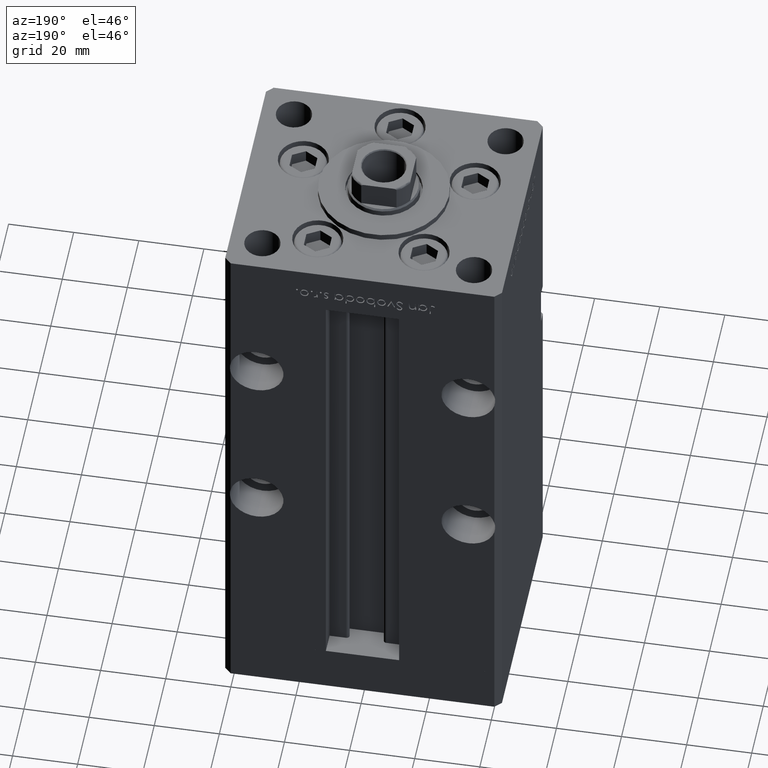
[diagram: clean part render]
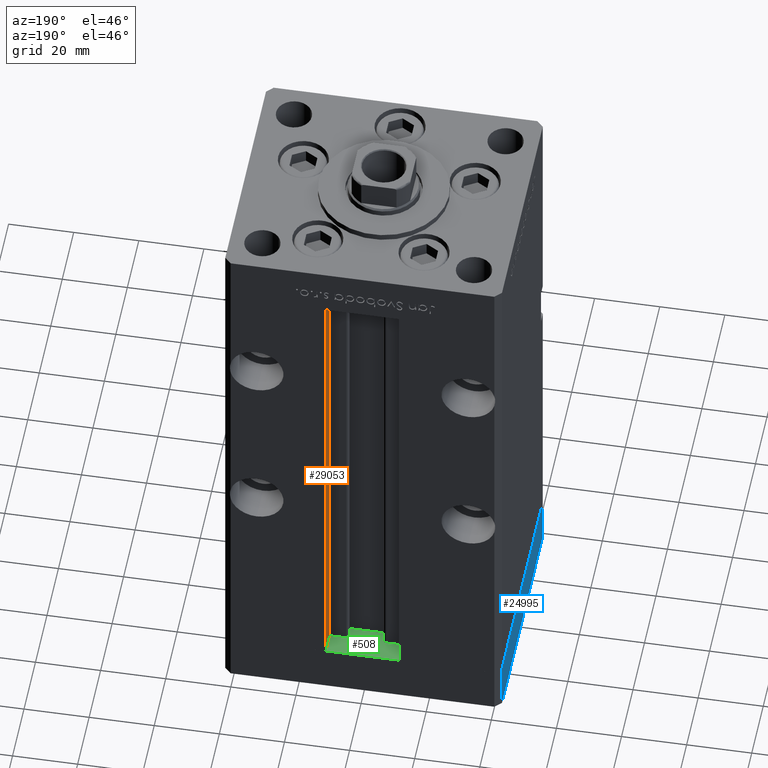
[diagram: same view with three faces highlighted in distinct colors, each labeled with its STEP entity id]
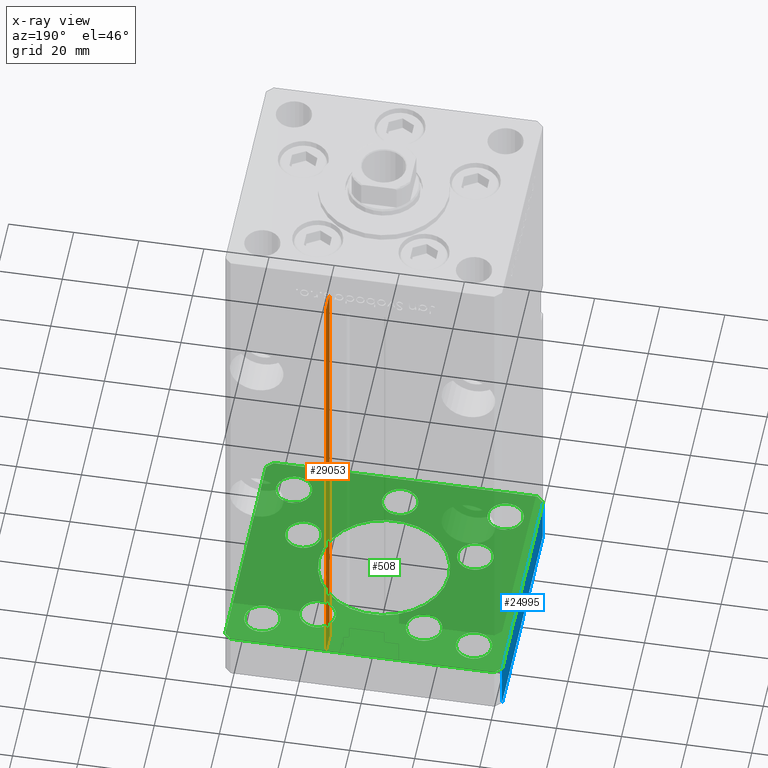
[diagram: x-ray of the same camera — body ghosted, the three highlighted faces saturated]
A machine part, auxiliary view with three faces highlighted in distinct colors.
The next image is the same camera in x-ray (body ghosted, the three faces saturated) — at least one of them is partly hidden behind the body in this view.
Their STEP definitions:

[orange] entity #29053 — the highlighted planar face has unit normal (1, 0, 0).
#919 = CARTESIAN_POINT ( 'NONE',  ( 11.24999999999999822, 37.50000000000000000, 0.000000000000000000 ) ) ;
#2530 = VERTEX_POINT ( 'NONE', #15769 ) ;
#3277 = DIRECTION ( 'NONE',  ( -0.000000000000000000, -0.000000000000000000, 1.000000000000000000 ) ) ;
#4105 = ORIENTED_EDGE ( 'NONE', *, *, #37421, .F. ) ;
#6387 = FACE_OUTER_BOUND ( 'NONE', #30369, .T. ) ;
#9852 = VECTOR ( 'NONE', #42411, 1000.000000000000000 ) ;
#11233 = PLANE ( 'NONE',  #36677 ) ;
#11888 = VECTOR ( 'NONE', #3277, 1000.000000000000000 ) ;
#12029 = CARTESIAN_POINT ( 'NONE',  ( 11.24999999999999822, 37.50000000000000000, 0.000000000000000000 ) ) ;
#15126 = LINE ( 'NONE', #19947, #11888 ) ;
#15372 = VECTOR ( 'NONE', #16315, 1000.000000000000000 ) ;
#15769 = CARTESIAN_POINT ( 'NONE',  ( 11.24999999999999112, 37.50000000000000000, 148.5000000000000000 ) ) ;
#16315 = DIRECTION ( 'NONE',  ( -0.000000000000000000, -1.000000000000000000, 0.000000000000000000 ) ) ;
#16731 = VERTEX_POINT ( 'NONE', #43349 ) ;
#19947 = CARTESIAN_POINT ( 'NONE',  ( 11.24999999999999822, 31.00000000000000000, 0.000000000000000000 ) ) ;
#23061 = CARTESIAN_POINT ( 'NONE',  ( 11.24999999999999822, 31.00000000000000000, 0.000000000000000000 ) ) ;
#23591 = EDGE_CURVE ( 'NONE', #32375, #31890, #46712, .T. ) ;
#24998 = ORIENTED_EDGE ( 'NONE', *, *, #23591, .F. ) ;
#25739 = CARTESIAN_POINT ( 'NONE',  ( 11.24999999999999822, 31.00000000000000000, 0.000000000000000000 ) ) ;
#29053 = ADVANCED_FACE ( 'NONE', ( #6387 ), #11233, .F. ) ;
#30369 = EDGE_LOOP ( 'NONE', ( #4105, #24998, #42258, #47545 ) ) ;
#31669 = DIRECTION ( 'NONE',  ( 0.000000000000000000, 0.000000000000000000, -1.000000000000000000 ) ) ;
#31890 = VERTEX_POINT ( 'NONE', #919 ) ;
#32375 = VERTEX_POINT ( 'NONE', #45187 ) ;
#36030 = EDGE_CURVE ( 'NONE', #32375, #16731, #15126, .T. ) ;
#36677 = AXIS2_PLACEMENT_3D ( 'NONE', #23061, #51044, #31669 ) ;
#37421 = EDGE_CURVE ( 'NONE', #31890, #2530, #40550, .T. ) ;
#40550 = LINE ( 'NONE', #12029, #51413 ) ;
#41719 = EDGE_CURVE ( 'NONE', #2530, #16731, #45890, .T. ) ;
#42258 = ORIENTED_EDGE ( 'NONE', *, *, #36030, .T. ) ;
#42411 = DIRECTION ( 'NONE',  ( 0.000000000000000000, 1.000000000000000000, 0.000000000000000000 ) ) ;
#43349 = CARTESIAN_POINT ( 'NONE',  ( 11.24999999999999822, 31.00000000000000000, 148.5000000000000000 ) ) ;
#45187 = CARTESIAN_POINT ( 'NONE',  ( 11.24999999999999822, 31.00000000000000000, 0.000000000000000000 ) ) ;
#45890 = LINE ( 'NONE', #53165, #15372 ) ;
#46712 = LINE ( 'NONE', #25739, #9852 ) ;
#47545 = ORIENTED_EDGE ( 'NONE', *, *, #41719, .F. ) ;
#47806 = DIRECTION ( 'NONE',  ( -0.000000000000000000, -0.000000000000000000, 1.000000000000000000 ) ) ;
#51044 = DIRECTION ( 'NONE',  ( 1.000000000000000000, -0.000000000000000000, 0.000000000000000000 ) ) ;
#51413 = VECTOR ( 'NONE', #47806, 1000.000000000000000 ) ;
#53165 = CARTESIAN_POINT ( 'NONE',  ( 11.24999999999999822, 0.000000000000000000, 148.5000000000000000 ) ) ;

[blue] entity #24995 — the highlighted planar face has unit normal (-1, -0, 0).
#1447 = VERTEX_POINT ( 'NONE', #15277 ) ;
#3538 = EDGE_CURVE ( 'NONE', #36526, #11255, #41050, .T. ) ;
#3737 = ORIENTED_EDGE ( 'NONE', *, *, #3538, .T. ) ;
#4448 = CARTESIAN_POINT ( 'NONE',  ( 42.50000000000000711, -35.50000000000000000, -15.00000000000000000 ) ) ;
#6499 = LINE ( 'NONE', #22913, #32957 ) ;
#10243 = ORIENTED_EDGE ( 'NONE', *, *, #16742, .F. ) ;
#10526 = ORIENTED_EDGE ( 'NONE', *, *, #49853, .F. ) ;
#11255 = VERTEX_POINT ( 'NONE', #39675 ) ;
#12251 = DIRECTION ( 'NONE',  ( -1.172770800660376741E-15, 1.000000000000000000, 0.000000000000000000 ) ) ;
#13293 = CARTESIAN_POINT ( 'NONE',  ( 42.49999999999992895, 35.50000000000000000, 0.000000000000000000 ) ) ;
#13799 = VECTOR ( 'NONE', #20600, 1000.000000000000000 ) ;
#15277 = CARTESIAN_POINT ( 'NONE',  ( 42.50000000000000711, -35.50000000000000000, 0.000000000000000000 ) ) ;
#16039 = CARTESIAN_POINT ( 'NONE',  ( 42.50000000000000711, -35.50000000000000000, -15.00000000000000000 ) ) ;
#16740 = ORIENTED_EDGE ( 'NONE', *, *, #52997, .T. ) ;
#16742 = EDGE_CURVE ( 'NONE', #1447, #39898, #6499, .T. ) ;
#20053 = PLANE ( 'NONE',  #26223 ) ;
#20600 = DIRECTION ( 'NONE',  ( -1.172770800660376741E-15, 1.000000000000000000, 0.000000000000000000 ) ) ;
#20836 = VECTOR ( 'NONE', #24555, 1000.000000000000000 ) ;
#20854 = DIRECTION ( 'NONE',  ( 1.000000000000000000, 1.172770800660376741E-15, -0.000000000000000000 ) ) ;
#22795 = CARTESIAN_POINT ( 'NONE',  ( 42.50000000000000711, -35.50000000000000000, -15.00000000000000000 ) ) ;
#22913 = CARTESIAN_POINT ( 'NONE',  ( 42.50000000000000711, -35.50000000000000000, 0.000000000000000000 ) ) ;
#24555 = DIRECTION ( 'NONE',  ( 0.000000000000000000, 0.000000000000000000, 1.000000000000000000 ) ) ;
#24995 = ADVANCED_FACE ( 'NONE', ( #41566 ), #20053, .T. ) ;
#25123 = EDGE_LOOP ( 'NONE', ( #10243, #10526, #3737, #16740 ) ) ;
#26223 = AXIS2_PLACEMENT_3D ( 'NONE', #4448, #20854, #12251 ) ;
#31069 = VECTOR ( 'NONE', #46715, 1000.000000000000000 ) ;
#32957 = VECTOR ( 'NONE', #39323, 1000.000000000000000 ) ;
#33681 = LINE ( 'NONE', #50089, #20836 ) ;
#34876 = LINE ( 'NONE', #46979, #31069 ) ;
#36526 = VERTEX_POINT ( 'NONE', #22795 ) ;
#39323 = DIRECTION ( 'NONE',  ( -1.172770800660376741E-15, 1.000000000000000000, 0.000000000000000000 ) ) ;
#39675 = CARTESIAN_POINT ( 'NONE',  ( 42.49999999999992895, 35.50000000000000000, -15.00000000000000000 ) ) ;
#39898 = VERTEX_POINT ( 'NONE', #13293 ) ;
#41050 = LINE ( 'NONE', #16039, #13799 ) ;
#41566 = FACE_OUTER_BOUND ( 'NONE', #25123, .T. ) ;
#46715 = DIRECTION ( 'NONE',  ( 0.000000000000000000, 0.000000000000000000, 1.000000000000000000 ) ) ;
#46979 = CARTESIAN_POINT ( 'NONE',  ( 42.50000000000000711, -35.50000000000000000, -15.00000000000000000 ) ) ;
#49853 = EDGE_CURVE ( 'NONE', #36526, #1447, #34876, .T. ) ;
#50089 = CARTESIAN_POINT ( 'NONE',  ( 42.49999999999992895, 35.50000000000000000, -15.00000000000000000 ) ) ;
#52997 = EDGE_CURVE ( 'NONE', #11255, #39898, #33681, .T. ) ;

[green] entity #508 — the highlighted planar face has unit normal (0, 0, -1).
#5 = ORIENTED_EDGE ( 'NONE', *, *, #20067, .F. ) ;
#118 = EDGE_LOOP ( 'NONE', ( #24921, #52442 ) ) ;
#173 = ORIENTED_EDGE ( 'NONE', *, *, #38806, .F. ) ;
#226 = VERTEX_POINT ( 'NONE', #38220 ) ;
#264 = CARTESIAN_POINT ( 'NONE',  ( -42.50000000000000711, 35.49999999999997158, -15.00000000000000000 ) ) ;
#345 = EDGE_LOOP ( 'NONE', ( #38540, #28589 ) ) ;
#454 = VERTEX_POINT ( 'NONE', #41133 ) ;
#508 = ADVANCED_FACE ( 'NONE', ( #9362, #51040, #25773, #42184, #5323, #46483, #31400, #48069, #11764, #44580, #27637 ), #35171, .F. ) ;
#576 = DIRECTION ( 'NONE',  ( -0.7071067811865474617, 0.7071067811865474617, 0.000000000000000000 ) ) ;
#667 = DIRECTION ( 'NONE',  ( 1.000000000000000000, 0.000000000000000000, 0.000000000000000000 ) ) ;
#766 = CARTESIAN_POINT ( 'NONE',  ( -27.00000000000000355, 27.50000000000000355, -15.00000000000000000 ) ) ;
#981 = CARTESIAN_POINT ( 'NONE',  ( -32.50000000000000000, -27.49999999999999645, -15.00000000000000000 ) ) ;
#1351 = CARTESIAN_POINT ( 'NONE',  ( 10.82291334290542473, 22.75000000000000000, -15.00000000000000000 ) ) ;
#1620 = VECTOR ( 'NONE', #33605, 1000.000000000000000 ) ;
#1873 = AXIS2_PLACEMENT_3D ( 'NONE', #47195, #7377, #51769 ) ;
#2018 = CARTESIAN_POINT ( 'NONE',  ( 32.50000000000000000, -27.49999999999999645, -15.00000000000000000 ) ) ;
#2022 = AXIS2_PLACEMENT_3D ( 'NONE', #40180, #52287, #15714 ) ;
#2181 = DIRECTION ( 'NONE',  ( 1.000000000000000000, 0.000000000000000000, 0.000000000000000000 ) ) ;
#2243 = AXIS2_PLACEMENT_3D ( 'NONE', #12226, #7913, #49339 ) ;
#2725 = CARTESIAN_POINT ( 'NONE',  ( 16.32291334290542295, 22.75000000000000000, -15.00000000000000000 ) ) ;
#2762 = CARTESIAN_POINT ( 'NONE',  ( 20.89865316429777309, -9.333333333333330373, -15.00000000000000000 ) ) ;
#3343 = DIRECTION ( 'NONE',  ( 0.000000000000000000, -0.000000000000000000, -1.000000000000000000 ) ) ;
#3429 = AXIS2_PLACEMENT_3D ( 'NONE', #43763, #44035, #6919 ) ;
#3538 = EDGE_CURVE ( 'NONE', #36526, #11255, #41050, .T. ) ;
#3545 = VERTEX_POINT ( 'NONE', #11732 ) ;
#3658 = VECTOR ( 'NONE', #576, 1000.000000000000114 ) ;
#3673 = CARTESIAN_POINT ( 'NONE',  ( -20.89865316429777309, -9.333333333333337478, -15.00000000000000000 ) ) ;
#3798 = AXIS2_PLACEMENT_3D ( 'NONE', #37534, #49628, #667 ) ;
#4438 = CIRCLE ( 'NONE', #6139, 5.499999999999998224 ) ;
#4452 = CARTESIAN_POINT ( 'NONE',  ( -10.82291334290543183, 22.74999999999999645, -15.00000000000000000 ) ) ;
#4596 = CARTESIAN_POINT ( 'NONE',  ( 40.50000000000000000, -37.50000000000000711, -15.00000000000000000 ) ) ;
#4791 = DIRECTION ( 'NONE',  ( 1.000000000000000000, 0.000000000000000000, 0.000000000000000000 ) ) ;
#5323 = FACE_BOUND ( 'NONE', #37825, .T. ) ;
#5418 = CARTESIAN_POINT ( 'NONE',  ( 40.50000000000000000, -37.50000000000000711, -15.00000000000000000 ) ) ;
#5698 = DIRECTION ( 'NONE',  ( -0.7071067811865463515, -0.7071067811865487940, 0.000000000000000000 ) ) ;
#5826 = CARTESIAN_POINT ( 'NONE',  ( 0.000000000000000000, 0.000000000000000000, -15.00000000000000000 ) ) ;
#6139 = AXIS2_PLACEMENT_3D ( 'NONE', #27136, #31175, #43534 ) ;
#6228 = CARTESIAN_POINT ( 'NONE',  ( 21.82291334290542650, 22.75000000000000000, -15.00000000000000000 ) ) ;
#6268 = VERTEX_POINT ( 'NONE', #45507 ) ;
#6431 = ORIENTED_EDGE ( 'NONE', *, *, #8705, .F. ) ;
#6919 = DIRECTION ( 'NONE',  ( 1.000000000000000000, 0.000000000000000000, 0.000000000000000000 ) ) ;
#7316 = VERTEX_POINT ( 'NONE', #26899 ) ;
#7335 = ORIENTED_EDGE ( 'NONE', *, *, #33531, .F. ) ;
#7377 = DIRECTION ( 'NONE',  ( 0.000000000000000000, 0.000000000000000000, 1.000000000000000000 ) ) ;
#7534 = DIRECTION ( 'NONE',  ( 1.000000000000000000, 0.000000000000000000, 0.000000000000000000 ) ) ;
#7879 = DIRECTION ( 'NONE',  ( -1.000000000000000000, 0.000000000000000000, 0.000000000000000000 ) ) ;
#7913 = DIRECTION ( 'NONE',  ( 0.000000000000000000, -0.000000000000000000, -1.000000000000000000 ) ) ;
#8705 = EDGE_CURVE ( 'NONE', #33188, #23979, #37873, .T. ) ;
#8839 = EDGE_LOOP ( 'NONE', ( #51075, #49207, #45627, #44941, #34857, #14259, #15519, #10927 ) ) ;
#9340 = DIRECTION ( 'NONE',  ( 1.000000000000000000, 0.000000000000000000, 0.000000000000000000 ) ) ;
#9362 = FACE_BOUND ( 'NONE', #43183, .T. ) ;
#9921 = CARTESIAN_POINT ( 'NONE',  ( 40.49999999999991473, 37.50000000000000711, -15.00000000000000000 ) ) ;
#10095 = EDGE_CURVE ( 'NONE', #30067, #30959, #47337, .T. ) ;
#10245 = CIRCLE ( 'NONE', #17974, 20.00000000000000000 ) ;
#10356 = DIRECTION ( 'NONE',  ( -1.000000000000000000, 0.000000000000000000, 0.000000000000000000 ) ) ;
#10448 = EDGE_CURVE ( 'NONE', #23979, #33188, #44830, .T. ) ;
#10871 = VERTEX_POINT ( 'NONE', #42501 ) ;
#10927 = ORIENTED_EDGE ( 'NONE', *, *, #40342, .F. ) ;
#11175 = EDGE_CURVE ( 'NONE', #35739, #43603, #41413, .T. ) ;
#11255 = VERTEX_POINT ( 'NONE', #39675 ) ;
#11408 = DIRECTION ( 'NONE',  ( 1.000000000000000000, 0.000000000000000000, 0.000000000000000000 ) ) ;
#11444 = CARTESIAN_POINT ( 'NONE',  ( -26.39865316429776954, -9.333333333333337478, -15.00000000000000000 ) ) ;
#11452 = EDGE_LOOP ( 'NONE', ( #33749, #43480 ) ) ;
#11692 = ORIENTED_EDGE ( 'NONE', *, *, #44879, .F. ) ;
#11713 = CIRCLE ( 'NONE', #2243, 5.500000000000000000 ) ;
#11732 = CARTESIAN_POINT ( 'NONE',  ( -27.00000000000000355, -27.49999999999999645, -15.00000000000000000 ) ) ;
#11764 = FACE_OUTER_BOUND ( 'NONE', #8839, .T. ) ;
#11779 = EDGE_CURVE ( 'NONE', #28811, #41771, #16533, .T. ) ;
#12155 = LINE ( 'NONE', #37442, #3658 ) ;
#12226 = CARTESIAN_POINT ( 'NONE',  ( 3.429011037612589276E-15, -28.00000000000000000, -15.00000000000000000 ) ) ;
#12294 = DIRECTION ( 'NONE',  ( -0.000000000000000000, -0.000000000000000000, -1.000000000000000000 ) ) ;
#12506 = CARTESIAN_POINT ( 'NONE',  ( 3.429011037612589276E-15, -28.00000000000000000, -15.00000000000000000 ) ) ;
#12724 = CARTESIAN_POINT ( 'NONE',  ( 32.50000000000000000, -27.49999999999999645, -15.00000000000000000 ) ) ;
#12876 = EDGE_CURVE ( 'NONE', #34640, #36526, #17791, .T. ) ;
#12892 = ORIENTED_EDGE ( 'NONE', *, *, #22876, .F. ) ;
#13088 = DIRECTION ( 'NONE',  ( -1.000000000000000000, 0.000000000000000000, 0.000000000000000000 ) ) ;
#13118 = DIRECTION ( 'NONE',  ( 0.7071067811865463515, -0.7071067811865487940, 0.000000000000000000 ) ) ;
#13554 = DIRECTION ( 'NONE',  ( 1.000000000000000000, 0.000000000000000000, 0.000000000000000000 ) ) ;
#13799 = VECTOR ( 'NONE', #20600, 1000.000000000000000 ) ;
#13891 = DIRECTION ( 'NONE',  ( 0.000000000000000000, -0.000000000000000000, -1.000000000000000000 ) ) ;
#14016 = CIRCLE ( 'NONE', #32916, 5.499999999999998224 ) ;
#14109 = EDGE_CURVE ( 'NONE', #6268, #30984, #14016, .T. ) ;
#14259 = ORIENTED_EDGE ( 'NONE', *, *, #3538, .F. ) ;
#14331 = VERTEX_POINT ( 'NONE', #9921 ) ;
#14950 = VECTOR ( 'NONE', #5698, 1000.000000000000000 ) ;
#14989 = VERTEX_POINT ( 'NONE', #15629 ) ;
#15468 = VECTOR ( 'NONE', #26636, 1000.000000000000000 ) ;
#15519 = ORIENTED_EDGE ( 'NONE', *, *, #12876, .F. ) ;
#15629 = CARTESIAN_POINT ( 'NONE',  ( 5.500000000000003553, -28.00000000000000000, -15.00000000000000000 ) ) ;
#15692 = AXIS2_PLACEMENT_3D ( 'NONE', #39568, #43322, #7534 ) ;
#15714 = DIRECTION ( 'NONE',  ( 1.000000000000000000, 0.000000000000000000, 0.000000000000000000 ) ) ;
#15887 = EDGE_CURVE ( 'NONE', #14331, #10871, #37220, .T. ) ;
#16039 = CARTESIAN_POINT ( 'NONE',  ( 42.50000000000000711, -35.50000000000000000, -15.00000000000000000 ) ) ;
#16270 = DIRECTION ( 'NONE',  ( 1.000000000000000000, 0.000000000000000000, 0.000000000000000000 ) ) ;
#16533 = CIRCLE ( 'NONE', #25130, 5.499999999999998224 ) ;
#17652 = EDGE_CURVE ( 'NONE', #10871, #42866, #46074, .T. ) ;
#17791 = LINE ( 'NONE', #5418, #37199 ) ;
#17936 = CIRCLE ( 'NONE', #44601, 5.499999999999998224 ) ;
#17974 = AXIS2_PLACEMENT_3D ( 'NONE', #20305, #32412, #16270 ) ;
#18431 = DIRECTION ( 'NONE',  ( -0.000000000000000000, -0.000000000000000000, -1.000000000000000000 ) ) ;
#18732 = ORIENTED_EDGE ( 'NONE', *, *, #11175, .T. ) ;
#18890 = EDGE_CURVE ( 'NONE', #454, #28567, #21010, .T. ) ;
#19516 = CIRCLE ( 'NONE', #49604, 5.500000000000001776 ) ;
#20067 = EDGE_CURVE ( 'NONE', #27360, #49234, #38964, .T. ) ;
#20305 = CARTESIAN_POINT ( 'NONE',  ( 0.000000000000000000, 0.000000000000000000, -15.00000000000000000 ) ) ;
#20344 = DIRECTION ( 'NONE',  ( -1.000000000000000000, 0.000000000000000000, 0.000000000000000000 ) ) ;
#20600 = DIRECTION ( 'NONE',  ( -1.172770800660376741E-15, 1.000000000000000000, 0.000000000000000000 ) ) ;
#21010 = CIRCLE ( 'NONE', #42462, 5.499999999999998224 ) ;
#22224 = DIRECTION ( 'NONE',  ( 1.000000000000000000, 0.000000000000000000, 0.000000000000000000 ) ) ;
#22795 = CARTESIAN_POINT ( 'NONE',  ( 42.50000000000000711, -35.50000000000000000, -15.00000000000000000 ) ) ;
#22876 = EDGE_CURVE ( 'NONE', #41771, #28811, #35604, .T. ) ;
#23204 = AXIS2_PLACEMENT_3D ( 'NONE', #33457, #32935, #24860 ) ;
#23783 = EDGE_LOOP ( 'NONE', ( #6431, #44786 ) ) ;
#23787 = CARTESIAN_POINT ( 'NONE',  ( 26.39865316429776954, -9.333333333333330373, -15.00000000000000000 ) ) ;
#23979 = VERTEX_POINT ( 'NONE', #30243 ) ;
#24319 = CARTESIAN_POINT ( 'NONE',  ( 27.00000000000000355, 27.49999999999999645, -15.00000000000000000 ) ) ;
#24860 = DIRECTION ( 'NONE',  ( 1.000000000000000000, 0.000000000000000000, 0.000000000000000000 ) ) ;
#24873 = AXIS2_PLACEMENT_3D ( 'NONE', #12506, #49618, #13554 ) ;
#24921 = ORIENTED_EDGE ( 'NONE', *, *, #14109, .F. ) ;
#24937 = CARTESIAN_POINT ( 'NONE',  ( 38.00000000000000000, 27.49999999999999645, -15.00000000000000000 ) ) ;
#25010 = LINE ( 'NONE', #264, #1620 ) ;
#25027 = VERTEX_POINT ( 'NONE', #42611 ) ;
#25125 = CARTESIAN_POINT ( 'NONE',  ( 20.00000000000000000, 0.000000000000000000, -15.00000000000000000 ) ) ;
#25130 = AXIS2_PLACEMENT_3D ( 'NONE', #11444, #48289, #40490 ) ;
#25357 = EDGE_LOOP ( 'NONE', ( #50543, #18732 ) ) ;
#25773 = FACE_BOUND ( 'NONE', #11452, .T. ) ;
#26491 = ORIENTED_EDGE ( 'NONE', *, *, #39837, .F. ) ;
#26636 = DIRECTION ( 'NONE',  ( 1.000000000000000000, 1.713307136767217096E-16, 0.000000000000000000 ) ) ;
#26650 = ORIENTED_EDGE ( 'NONE', *, *, #11779, .F. ) ;
#26834 = CIRCLE ( 'NONE', #15692, 5.499999999999998224 ) ;
#26899 = CARTESIAN_POINT ( 'NONE',  ( -5.499999999999996447, -28.00000000000000000, -15.00000000000000000 ) ) ;
#27136 = CARTESIAN_POINT ( 'NONE',  ( 26.39865316429776954, -9.333333333333330373, -15.00000000000000000 ) ) ;
#27292 = AXIS2_PLACEMENT_3D ( 'NONE', #2018, #18431, #10356 ) ;
#27360 = VERTEX_POINT ( 'NONE', #1351 ) ;
#27464 = DIRECTION ( 'NONE',  ( 0.000000000000000000, -0.000000000000000000, -1.000000000000000000 ) ) ;
#27637 = FACE_BOUND ( 'NONE', #43682, .T. ) ;
#28413 = EDGE_CURVE ( 'NONE', #7316, #14989, #11713, .T. ) ;
#28567 = VERTEX_POINT ( 'NONE', #2762 ) ;
#28589 = ORIENTED_EDGE ( 'NONE', *, *, #50367, .F. ) ;
#28811 = VERTEX_POINT ( 'NONE', #51367 ) ;
#28895 = CARTESIAN_POINT ( 'NONE',  ( 27.00000000000000355, -27.49999999999999645, -15.00000000000000000 ) ) ;
#29171 = CARTESIAN_POINT ( 'NONE',  ( -38.00000000000000000, 27.50000000000000355, -15.00000000000000000 ) ) ;
#29266 = LINE ( 'NONE', #45670, #48198 ) ;
#30052 = DIRECTION ( 'NONE',  ( 0.000000000000000000, 0.000000000000000000, 1.000000000000000000 ) ) ;
#30067 = VERTEX_POINT ( 'NONE', #53193 ) ;
#30225 = AXIS2_PLACEMENT_3D ( 'NONE', #32642, #44486, #11408 ) ;
#30243 = CARTESIAN_POINT ( 'NONE',  ( -21.82291334290543361, 22.74999999999999645, -15.00000000000000000 ) ) ;
#30959 = VERTEX_POINT ( 'NONE', #25125 ) ;
#30984 = VERTEX_POINT ( 'NONE', #28895 ) ;
#31175 = DIRECTION ( 'NONE',  ( 0.000000000000000000, -0.000000000000000000, -1.000000000000000000 ) ) ;
#31400 = FACE_BOUND ( 'NONE', #25357, .T. ) ;
#31668 = EDGE_CURVE ( 'NONE', #30984, #6268, #47897, .T. ) ;
#32104 = VECTOR ( 'NONE', #49039, 1000.000000000000000 ) ;
#32412 = DIRECTION ( 'NONE',  ( 0.000000000000000000, -0.000000000000000000, -1.000000000000000000 ) ) ;
#32518 = EDGE_LOOP ( 'NONE', ( #12892, #26650 ) ) ;
#32614 = CIRCLE ( 'NONE', #53244, 5.499999999999998224 ) ;
#32642 = CARTESIAN_POINT ( 'NONE',  ( -16.32291334290543006, 22.74999999999999645, -15.00000000000000000 ) ) ;
#32916 = AXIS2_PLACEMENT_3D ( 'NONE', #12724, #41238, #7879 ) ;
#32935 = DIRECTION ( 'NONE',  ( 0.000000000000000000, 0.000000000000000000, 1.000000000000000000 ) ) ;
#33188 = VERTEX_POINT ( 'NONE', #4452 ) ;
#33457 = CARTESIAN_POINT ( 'NONE',  ( -32.50000000000000000, 27.50000000000000355, -15.00000000000000000 ) ) ;
#33531 = EDGE_CURVE ( 'NONE', #49234, #27360, #19516, .T. ) ;
#33605 = DIRECTION ( 'NONE',  ( 9.773090005503140331E-17, -1.000000000000000000, 0.000000000000000000 ) ) ;
#33749 = ORIENTED_EDGE ( 'NONE', *, *, #39941, .F. ) ;
#33775 = CARTESIAN_POINT ( 'NONE',  ( -32.50000000000000000, -27.49999999999999645, -15.00000000000000000 ) ) ;
#34640 = VERTEX_POINT ( 'NONE', #4596 ) ;
#34857 = ORIENTED_EDGE ( 'NONE', *, *, #52459, .F. ) ;
#34985 = CARTESIAN_POINT ( 'NONE',  ( -40.49999999999999289, -37.50000000000002132, -15.00000000000000000 ) ) ;
#35171 = PLANE ( 'NONE',  #3429 ) ;
#35334 = AXIS2_PLACEMENT_3D ( 'NONE', #5826, #51019, #9340 ) ;
#35604 = CIRCLE ( 'NONE', #3798, 5.499999999999998224 ) ;
#35739 = VERTEX_POINT ( 'NONE', #24319 ) ;
#36169 = DIRECTION ( 'NONE',  ( 1.000000000000000000, 0.000000000000000000, 0.000000000000000000 ) ) ;
#36467 = VERTEX_POINT ( 'NONE', #766 ) ;
#36526 = VERTEX_POINT ( 'NONE', #22795 ) ;
#37199 = VECTOR ( 'NONE', #46573, 1000.000000000000114 ) ;
#37220 = LINE ( 'NONE', #44478, #32104 ) ;
#37442 = CARTESIAN_POINT ( 'NONE',  ( 42.49999999999992895, 35.50000000000000000, -15.00000000000000000 ) ) ;
#37534 = CARTESIAN_POINT ( 'NONE',  ( -26.39865316429776954, -9.333333333333337478, -15.00000000000000000 ) ) ;
#37825 = EDGE_LOOP ( 'NONE', ( #7335, #5 ) ) ;
#37873 = CIRCLE ( 'NONE', #38754, 5.500000000000000000 ) ;
#37901 = VERTEX_POINT ( 'NONE', #29171 ) ;
#38070 = ORIENTED_EDGE ( 'NONE', *, *, #53162, .T. ) ;
#38138 = CARTESIAN_POINT ( 'NONE',  ( 32.50000000000000000, 27.49999999999999645, -15.00000000000000000 ) ) ;
#38220 = CARTESIAN_POINT ( 'NONE',  ( -38.00000000000000000, -27.49999999999999645, -15.00000000000000000 ) ) ;
#38236 = EDGE_CURVE ( 'NONE', #42866, #51025, #25010, .T. ) ;
#38540 = ORIENTED_EDGE ( 'NONE', *, *, #18890, .F. ) ;
#38754 = AXIS2_PLACEMENT_3D ( 'NONE', #50734, #13891, #22224 ) ;
#38806 = EDGE_CURVE ( 'NONE', #226, #3545, #17936, .T. ) ;
#38964 = CIRCLE ( 'NONE', #2022, 5.500000000000001776 ) ;
#39452 = CIRCLE ( 'NONE', #24873, 5.500000000000000000 ) ;
#39568 = CARTESIAN_POINT ( 'NONE',  ( -32.50000000000000000, 27.50000000000000355, -15.00000000000000000 ) ) ;
#39675 = CARTESIAN_POINT ( 'NONE',  ( 42.49999999999992895, 35.50000000000000000, -15.00000000000000000 ) ) ;
#39837 = EDGE_CURVE ( 'NONE', #30959, #30067, #10245, .T. ) ;
#39941 = EDGE_CURVE ( 'NONE', #14989, #7316, #39452, .T. ) ;
#39949 = CARTESIAN_POINT ( 'NONE',  ( -42.50000000000000711, 35.49999999999997158, -15.00000000000000000 ) ) ;
#40180 = CARTESIAN_POINT ( 'NONE',  ( 16.32291334290542295, 22.75000000000000000, -15.00000000000000000 ) ) ;
#40342 = EDGE_CURVE ( 'NONE', #25027, #34640, #42784, .T. ) ;
#40490 = DIRECTION ( 'NONE',  ( 1.000000000000000000, 0.000000000000000000, 0.000000000000000000 ) ) ;
#41050 = LINE ( 'NONE', #16039, #13799 ) ;
#41133 = CARTESIAN_POINT ( 'NONE',  ( 31.89865316429776954, -9.333333333333330373, -15.00000000000000000 ) ) ;
#41238 = DIRECTION ( 'NONE',  ( -0.000000000000000000, -0.000000000000000000, -1.000000000000000000 ) ) ;
#41351 = CIRCLE ( 'NONE', #52512, 5.499999999999998224 ) ;
#41413 = CIRCLE ( 'NONE', #1873, 5.499999999999998224 ) ;
#41771 = VERTEX_POINT ( 'NONE', #3673 ) ;
#42184 = FACE_BOUND ( 'NONE', #345, .T. ) ;
#42462 = AXIS2_PLACEMENT_3D ( 'NONE', #23787, #3343, #36169 ) ;
#42501 = CARTESIAN_POINT ( 'NONE',  ( -40.50000000000000711, 37.49999999999997868, -15.00000000000000000 ) ) ;
#42611 = CARTESIAN_POINT ( 'NONE',  ( -40.49999999999999289, -37.50000000000002132, -15.00000000000000000 ) ) ;
#42784 = LINE ( 'NONE', #34985, #15468 ) ;
#42866 = VERTEX_POINT ( 'NONE', #39949 ) ;
#43183 = EDGE_LOOP ( 'NONE', ( #26491, #52932 ) ) ;
#43322 = DIRECTION ( 'NONE',  ( 0.000000000000000000, 0.000000000000000000, 1.000000000000000000 ) ) ;
#43480 = ORIENTED_EDGE ( 'NONE', *, *, #28413, .F. ) ;
#43534 = DIRECTION ( 'NONE',  ( 1.000000000000000000, 0.000000000000000000, 0.000000000000000000 ) ) ;
#43603 = VERTEX_POINT ( 'NONE', #24937 ) ;
#43682 = EDGE_LOOP ( 'NONE', ( #11692, #173 ) ) ;
#43763 = CARTESIAN_POINT ( 'NONE',  ( 0.000000000000000000, 0.000000000000000000, -15.00000000000000000 ) ) ;
#44035 = DIRECTION ( 'NONE',  ( -0.000000000000000000, 0.000000000000000000, 1.000000000000000000 ) ) ;
#44478 = CARTESIAN_POINT ( 'NONE',  ( 40.49999999999991473, 37.50000000000000711, -15.00000000000000000 ) ) ;
#44486 = DIRECTION ( 'NONE',  ( 0.000000000000000000, -0.000000000000000000, -1.000000000000000000 ) ) ;
#44580 = FACE_BOUND ( 'NONE', #118, .T. ) ;
#44601 = AXIS2_PLACEMENT_3D ( 'NONE', #981, #12294, #13088 ) ;
#44786 = ORIENTED_EDGE ( 'NONE', *, *, #10448, .F. ) ;
#44830 = CIRCLE ( 'NONE', #30225, 5.500000000000000000 ) ;
#44879 = EDGE_CURVE ( 'NONE', #3545, #226, #32614, .T. ) ;
#44941 = ORIENTED_EDGE ( 'NONE', *, *, #15887, .F. ) ;
#45220 = ORIENTED_EDGE ( 'NONE', *, *, #45979, .T. ) ;
#45507 = CARTESIAN_POINT ( 'NONE',  ( 38.00000000000000000, -27.49999999999999645, -15.00000000000000000 ) ) ;
#45620 = DIRECTION ( 'NONE',  ( -0.000000000000000000, -0.000000000000000000, -1.000000000000000000 ) ) ;
#45627 = ORIENTED_EDGE ( 'NONE', *, *, #17652, .F. ) ;
#45670 = CARTESIAN_POINT ( 'NONE',  ( -42.50000000000000000, -35.50000000000000711, -15.00000000000000000 ) ) ;
#45979 = EDGE_CURVE ( 'NONE', #36467, #37901, #51535, .T. ) ;
#46074 = LINE ( 'NONE', #46330, #14950 ) ;
#46148 = CARTESIAN_POINT ( 'NONE',  ( -42.50000000000000000, -35.50000000000000711, -15.00000000000000000 ) ) ;
#46330 = CARTESIAN_POINT ( 'NONE',  ( -40.50000000000000711, 37.49999999999997868, -15.00000000000000000 ) ) ;
#46483 = FACE_BOUND ( 'NONE', #23783, .T. ) ;
#46573 = DIRECTION ( 'NONE',  ( 0.7071067811865474617, 0.7071067811865474617, 0.000000000000000000 ) ) ;
#47195 = CARTESIAN_POINT ( 'NONE',  ( 32.50000000000000000, 27.49999999999999645, -15.00000000000000000 ) ) ;
#47337 = CIRCLE ( 'NONE', #35334, 20.00000000000000000 ) ;
#47897 = CIRCLE ( 'NONE', #27292, 5.499999999999998224 ) ;
#48069 = FACE_BOUND ( 'NONE', #51064, .T. ) ;
#48198 = VECTOR ( 'NONE', #13118, 1000.000000000000000 ) ;
#48289 = DIRECTION ( 'NONE',  ( 0.000000000000000000, -0.000000000000000000, -1.000000000000000000 ) ) ;
#48671 = EDGE_CURVE ( 'NONE', #51025, #25027, #29266, .T. ) ;
#49039 = DIRECTION ( 'NONE',  ( -1.000000000000000000, -3.426614273534436165E-16, 0.000000000000000000 ) ) ;
#49207 = ORIENTED_EDGE ( 'NONE', *, *, #38236, .F. ) ;
#49234 = VERTEX_POINT ( 'NONE', #6228 ) ;
#49339 = DIRECTION ( 'NONE',  ( 1.000000000000000000, 0.000000000000000000, 0.000000000000000000 ) ) ;
#49574 = EDGE_CURVE ( 'NONE', #43603, #35739, #41351, .T. ) ;
#49604 = AXIS2_PLACEMENT_3D ( 'NONE', #2725, #27464, #2181 ) ;
#49618 = DIRECTION ( 'NONE',  ( 0.000000000000000000, -0.000000000000000000, -1.000000000000000000 ) ) ;
#49628 = DIRECTION ( 'NONE',  ( 0.000000000000000000, -0.000000000000000000, -1.000000000000000000 ) ) ;
#50367 = EDGE_CURVE ( 'NONE', #28567, #454, #4438, .T. ) ;
#50543 = ORIENTED_EDGE ( 'NONE', *, *, #49574, .T. ) ;
#50734 = CARTESIAN_POINT ( 'NONE',  ( -16.32291334290543006, 22.74999999999999645, -15.00000000000000000 ) ) ;
#51019 = DIRECTION ( 'NONE',  ( 0.000000000000000000, -0.000000000000000000, -1.000000000000000000 ) ) ;
#51025 = VERTEX_POINT ( 'NONE', #46148 ) ;
#51040 = FACE_BOUND ( 'NONE', #32518, .T. ) ;
#51064 = EDGE_LOOP ( 'NONE', ( #45220, #38070 ) ) ;
#51075 = ORIENTED_EDGE ( 'NONE', *, *, #48671, .F. ) ;
#51367 = CARTESIAN_POINT ( 'NONE',  ( -31.89865316429776954, -9.333333333333337478, -15.00000000000000000 ) ) ;
#51535 = CIRCLE ( 'NONE', #23204, 5.499999999999998224 ) ;
#51769 = DIRECTION ( 'NONE',  ( 1.000000000000000000, 0.000000000000000000, 0.000000000000000000 ) ) ;
#52287 = DIRECTION ( 'NONE',  ( 0.000000000000000000, -0.000000000000000000, -1.000000000000000000 ) ) ;
#52442 = ORIENTED_EDGE ( 'NONE', *, *, #31668, .F. ) ;
#52459 = EDGE_CURVE ( 'NONE', #11255, #14331, #12155, .T. ) ;
#52512 = AXIS2_PLACEMENT_3D ( 'NONE', #38138, #30052, #4791 ) ;
#52932 = ORIENTED_EDGE ( 'NONE', *, *, #10095, .F. ) ;
#53162 = EDGE_CURVE ( 'NONE', #37901, #36467, #26834, .T. ) ;
#53193 = CARTESIAN_POINT ( 'NONE',  ( -20.00000000000000000, 2.449293598294706513E-15, -15.00000000000000000 ) ) ;
#53244 = AXIS2_PLACEMENT_3D ( 'NONE', #33775, #45620, #20344 ) ;